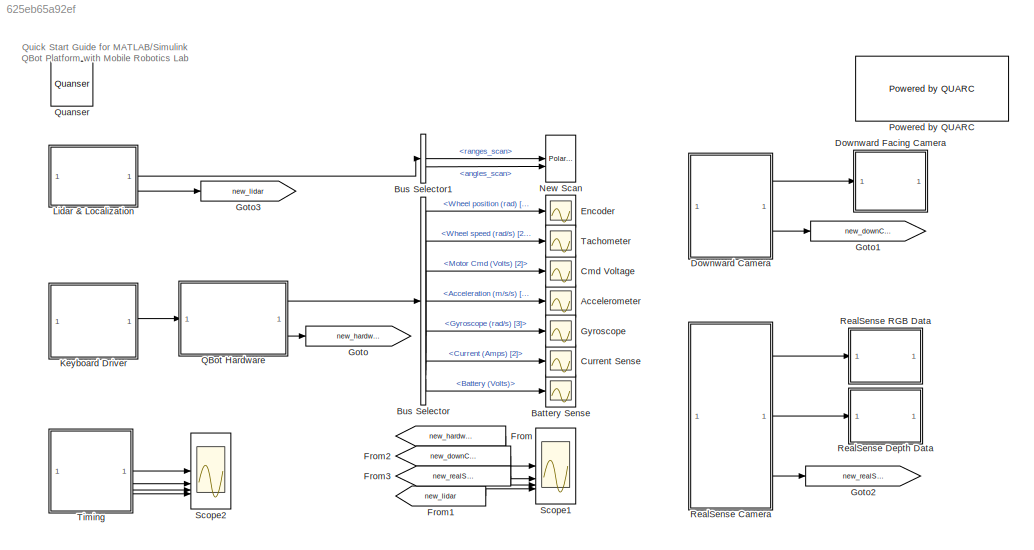
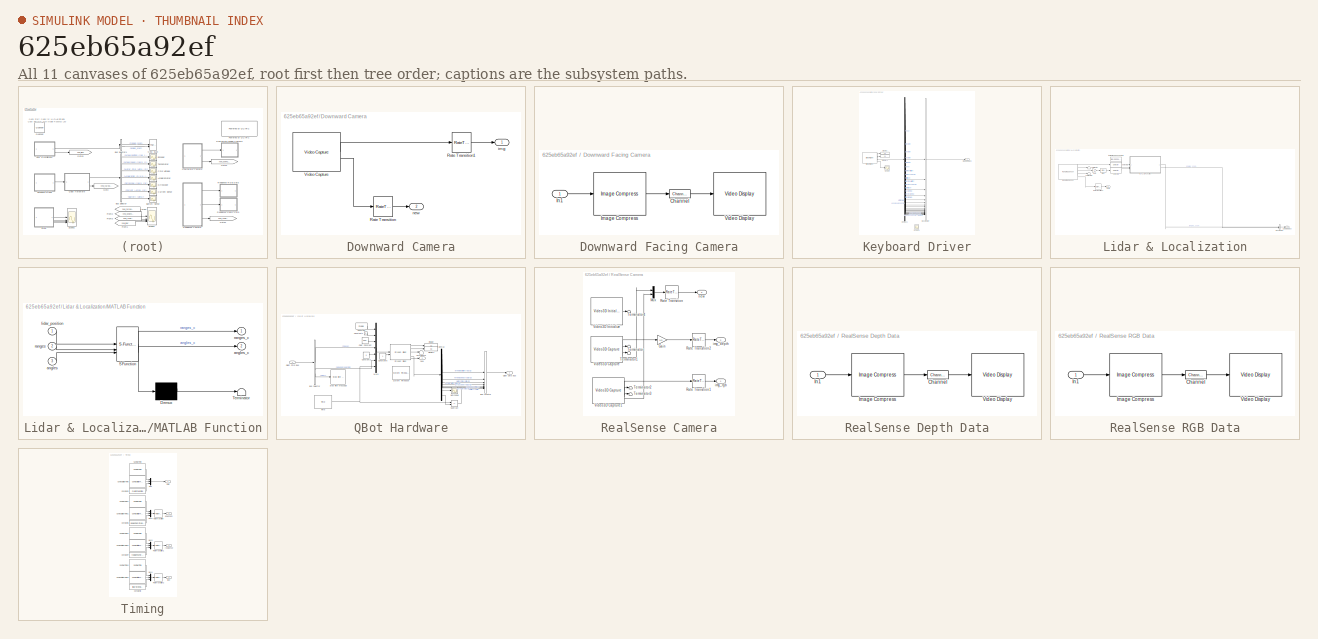
[diagram: thumbnail index - all 11 canvases of the model, root first then tree order]
MODEL slx_625eb65a92ef
KIND model
CONFIG AbsTol = auto
CONFIG EnableMultiTasking = off
CONFIG FixedStep = 1/60
CONFIG MaxStep = auto
CONFIG MinStep = auto
CONFIG PostLoadFcn = qlabs_setup
CONFIG RelTol = 1e-3
CONFIG SampleTimeConstraint = Unconstrained
CONFIG SolverName = ode1
CONFIG StartTime = 0.0
CONFIG StopTime = Inf
WORKSPACE source: mxarray member
WORKSPACE Sig: Simulink.Signal (value not decoded)
WORKSPACE downCamStepSize: Simulink.Parameter (value not decoded)
WORKSPACE lidarStepSize: Simulink.Parameter (value not decoded)
WORKSPACE mainStepSize: Simulink.Parameter (value not decoded)
WORKSPACE mode: Simulink.Parameter (value not decoded)
WORKSPACE realSenseStepSize: Simulink.Parameter (value not decoded)
BLOCK [Scope] Accelerometer
  Floating = off
  NameLocation = right
  NumInputPorts = 1
  ScopeSpecificationString = Simulink.scopes.TimeScopeBlockCfg('CurrentConfiguration', extmgr.ConfigurationSet(extmgr.Configuration('Core','General UI',true),extmgr.Configuration('Core','Source UI',true),extmgr.Configuration('Sources','WiredSimulink',true,'DataLoggingVariableName','ScopeData5'),extmgr.Configuration('Visuals','Time Domain',true,'SerializedDisplays',{struct('MinYLimReal','-1.32758','MaxYLimReal','11.23','YLabel...<+1468ch>
BLOCK [Scope] Battery Sense
  Floating = off
  NameLocation = right
  NumInputPorts = 1
  ScopeSpecificationString = Simulink.scopes.TimeScopeBlockCfg('CurrentConfiguration', extmgr.ConfigurationSet(extmgr.Configuration('Core','General UI',true),extmgr.Configuration('Core','Source UI',true),extmgr.Configuration('Sources','WiredSimulink',true,'DataLoggingVariableName','ScopeData8'),extmgr.Configuration('Visuals','Time Domain',true,'SerializedDisplays',{struct('MinYLimReal','12.81161','MaxYLimReal','12.96349','YLa...<+1408ch>
BLOCK [BusSelector] Bus Selector
  OutputSignals = Wheel position (rad) [2],Wheel speed (rad/s) [2],Motor Cmd (Volts) [2],Acceleration (m/s/s) [3],Gyroscope (rad/s) [3],Current (Amps) [2],Battery (Volts)
BLOCK [BusSelector] Bus Selector1
  OutputSignals = ranges_scan,angles_scan
BLOCK [Scope] Cmd Voltage
  Floating = off
  NameLocation = right
  NumInputPorts = 1
  ScopeSpecificationString = Simulink.scopes.TimeScopeBlockCfg('CurrentConfiguration', extmgr.ConfigurationSet(extmgr.Configuration('Core','General UI',true),extmgr.Configuration('Core','Source UI',true),extmgr.Configuration('Sources','WiredSimulink',true,'DataLoggingVariableName','ScopeData4'),extmgr.Configuration('Visuals','Time Domain',true,'SerializedDisplays',{struct('MinYLimReal','-1.00000','MaxYLimReal','1.00000','YLab...<+1441ch>
BLOCK [Scope] Current Sense
  Floating = off
  NameLocation = right
  NumInputPorts = 1
  ScopeSpecificationString = Simulink.scopes.TimeScopeBlockCfg('CurrentConfiguration', extmgr.ConfigurationSet(extmgr.Configuration('Core','General UI',true),extmgr.Configuration('Core','Source UI',true),extmgr.Configuration('Sources','WiredSimulink',true,'DataLoggingVariableName','ScopeData7'),extmgr.Configuration('Visuals','Time Domain',true,'SerializedDisplays',{struct('MinYLimReal','-0.05029','MaxYLimReal','0.45265','YLab...<+1434ch>
BLOCK [SubSystem] Downward Camera
BLOCK [RateTransition] Downward Camera/Rate Transition
BLOCK [RateTransition] Downward Camera/Rate Transition1
  OutPortSampleTime = downCamStepSize*4
BLOCK [Reference] Downward Camera/Video Capture  REF=quarc_library/Multimedia/Video Capture
  SourceBlock = quarc_library/Multimedia/Video Capture
  SourceProductName = QUARC Targets
  SourceType = Video Capture
BLOCK [Outport] Downward Camera/img
BLOCK [Outport] Downward Camera/new
  Port = 2
BLOCK [SubSystem] Downward Facing Camera
  CopyFcn = set_param(gcbh, 'UserData', gcb);\nset_param(gcbh, 'LinkStatus', 'none');
  LoadFcn = set_param(gcbh, 'UserData', gcb);
  NameChangeFcn = video_display_show([get_param(gcbh, 'UserData'), '/Video Display'], 'rename', [gcb, '/Video Display']);\nvideo_display_show([gcb, '/Video Display'], 'add', gcb);\nset_param(gcbh, 'UserData', gcb);  <repeated x3 — deduplicated; at blocks: Downward Facing Camera, RealSense Depth Data, RealSense RGB Data>
  NameLocation = right
  OpenFcn = video_display_show([gcb, '/Video Display'], 'show', gcb);
  PreDeleteFcn = video_display_show([gcb, '/Video Display'], 'delete');
  StartFcn = video_display_show([gcb, '/Video Display'], 'add', gcb);
  UndoDeleteFcn = set_param(gcbh, 'UserData', gcb);
BLOCK [Reference] Downward Facing Camera/Channel  REF=quarc_library/Signal Routing/Channel
  SourceBlock = quarc_library/Signal Routing/Channel
  SourceProductName = QUARC Targets
  SourceType = Channel
BLOCK [Reference] Downward Facing Camera/Image Compress  REF=quarc_library/Image Processing/Generic/Image Compress
  AttributesFormatString = (%<algorithm>)
  SourceBlock = quarc_library/Image Processing/Generic/Image Compress
  SourceProductName = QUARC Targets
  SourceType = Image Compress
BLOCK [Inport] Downward Facing Camera/In1
BLOCK [Reference] Downward Facing Camera/Video Display  REF=quarc_library/Multimedia/Video Display
  SourceBlock = quarc_library/Multimedia/Video Display
  SourceProductName = QUARC Targets
  SourceType = Video Display
  Tag = quick_start_qbot_platform_t/Downward Facing Camera/Video Display
  UserDataPersistent = on
BLOCK [Scope] Encoder
  Floating = off
  NameLocation = right
  NumInputPorts = 1
  ScopeSpecificationString = Simulink.scopes.TimeScopeBlockCfg('CurrentConfiguration', extmgr.ConfigurationSet(extmgr.Configuration('Core','General UI',true),extmgr.Configuration('Core','Source UI',true),extmgr.Configuration('Sources','WiredSimulink',true,'DataLoggingVariableName','ScopeData2'),extmgr.Configuration('Visuals','Time Domain',true,'SerializedDisplays',{struct('MinYLimReal','-23.46955','MaxYLimReal','23.65434','YL...<+1452ch>
BLOCK [From] From
  GotoTag = new_hardware
BLOCK [From] From1
  GotoTag = new_lidar
BLOCK [From] From2
  GotoTag = new_downCam
BLOCK [From] From3
  GotoTag = new_realSense
BLOCK [Goto] Goto
  GotoTag = new_hardware
BLOCK [Goto] Goto1
  GotoTag = new_downCam
BLOCK [Goto] Goto2
  GotoTag = new_realSense
BLOCK [Goto] Goto3
  GotoTag = new_lidar
BLOCK [Scope] Gyroscope
  Floating = off
  NameLocation = right
  NumInputPorts = 1
  ScopeSpecificationString = Simulink.scopes.TimeScopeBlockCfg('CurrentConfiguration', extmgr.ConfigurationSet(extmgr.Configuration('Core','General UI',true),extmgr.Configuration('Core','Source UI',true),extmgr.Configuration('Sources','WiredSimulink',true,'DataLoggingVariableName','ScopeData6'),extmgr.Configuration('Visuals','Time Domain',true,'SerializedDisplays',{struct('MinYLimReal','-0.40322','MaxYLimReal','1.99912','YLab...<+1468ch>
BLOCK [SubSystem] Keyboard Driver
BLOCK [BusCreator] Keyboard Driver/Bus Creator
  DisplayOption = bar
  InheritFromInputs = on
  Inputs = 21
BLOCK [Demux] Keyboard Driver/Demux1
  Outputs = [1 1 1 1 1 1 1 1 1 1 1 1 1 1 1 1 2 2 2 2 1]
BLOCK [Display] Keyboard Driver/Display
  Decimation = 1
BLOCK [Display] Keyboard Driver/Display1
  Decimation = 1
BLOCK [Outport] Keyboard Driver/QBot Cmd Bus
BLOCK [Scope] Keyboard Driver/Scope
  Floating = off
  NumInputPorts = 1
  ScopeSpecificationString = Simulink.scopes.TimeScopeBlockCfg('CurrentConfiguration', extmgr.ConfigurationSet(extmgr.Configuration('Core','General UI',true),extmgr.Configuration('Core','Source UI',true),extmgr.Configuration('Sources','WiredSimulink',true,'DataLoggingVariableName','ScopeData1'),extmgr.Configuration('Visuals','Time Domain',true,'SerializedDisplays',{struct('MinYLimReal','-0.125','MaxYLimReal','1.125','YLabelRe...<+1362ch>
BLOCK [Scope] Keyboard Driver/Scope1
  Floating = off
  NumInputPorts = 1
  ScopeSpecificationString = Simulink.scopes.TimeScopeBlockCfg('CurrentConfiguration', extmgr.ConfigurationSet(extmgr.Configuration('Core','General UI',true),extmgr.Configuration('Core','Source UI',true),extmgr.Configuration('Sources','WiredSimulink',true,'DataLoggingVariableName','ScopeData2'),extmgr.Configuration('Visuals','Time Domain',true,'SerializedDisplays',{struct('MinYLimReal','-1.00000','MaxYLimReal','1.00000','YLab...<+1403ch>
BLOCK [Reference] Keyboard Driver/Stream Client  REF=quarc_library/Communications/Basic/Stream Client
  AttributesFormatString = "tcpip://localhost:18889?nagle='off'"
  SourceBlock = quarc_library/Communications/Basic/Stream Client
  SourceProductName = QUARC Targets
  SourceType = Stream Client
BLOCK [SubSystem] Lidar & Localization
BLOCK [Bias] Lidar & Localization/Bias
  Bias = pi/2
  SaturateOnIntegerOverflow = off
BLOCK [BusCreator] Lidar & Localization/Bus Creator
  DisplayOption = bar
  InheritFromInputs = on
  Inputs = 2
BLOCK [Gain] Lidar & Localization/Gain
  Gain = -1
BLOCK [Outport] Lidar & Localization/Lidar Data Bus
BLOCK [SubSystem] Lidar & Localization/MATLAB Function
  ErrorFcn = Stateflow.Translate.translate
  LibrarySourceBlock = simulink/User-Defined\nFunctions/MATLAB Function
  PermitHierarchicalResolution = ExplicitOnly
  SFBlockType = MATLAB Function
  TreatAsAtomicUnit = on
BLOCK [Demux] Lidar & Localization/MATLAB Function/ Demux 
  Outputs = 1
BLOCK [S-Function] Lidar & Localization/MATLAB Function/ SFunction 
  EnableBusSupport = on
  FunctionName = sf_sfun
  PortCounts = [3 3]
  SFcnIsStateOwnerBlock = off
  SFunctionDeploymentMode = off
  Tag = Stateflow S-Function 4
BLOCK [Terminator] Lidar & Localization/MATLAB Function/ Terminator 
BLOCK [Inport] Lidar & Localization/MATLAB Function/angles
  Port = 3
BLOCK [Outport] Lidar & Localization/MATLAB Function/angles_c
  Port = 2
BLOCK [Inport] Lidar & Localization/MATLAB Function/lidar_position
BLOCK [Inport] Lidar & Localization/MATLAB Function/ranges
  Port = 2
BLOCK [Outport] Lidar & Localization/MATLAB Function/ranges_c
BLOCK [Reference] Lidar & Localization/Ranging Sensor  REF=quarc_library/Devices/Third-Party/Sensors/Ranging Sensor
  SourceBlock = quarc_library/Devices/Third-Party/Sensors/Ranging Sensor
  SourceProductName = QUARC Targets
  SourceType = Ranging Sensor
BLOCK [RateTransition] Lidar & Localization/Rate Transition4
BLOCK [Selector] Lidar & Localization/Selector1
  IndexOptions = Index vector (dialog)
  Indices = [1:4:1677]
  InputPortWidth = 1680
  OutputSizes = 1
BLOCK [Selector] Lidar & Localization/Selector2
  IndexOptions = Index vector (dialog)
  Indices = [1:4:1677]
  InputPortWidth = 1680
  OutputSizes = 1
BLOCK [Terminator] Lidar & Localization/Terminator
BLOCK [Terminator] Lidar & Localization/Terminator1
BLOCK [Outport] Lidar & Localization/new
  Port = 2
BLOCK [Constant] Lidar & Localization/the lidar is 9.5" ahead of CG
  NameLocation = top
  SampleTime = lidarStepSize
  Value = [9.5*0.0254, 0]
BLOCK [Reference] New Scan  REF=quarc_library/Sinks/Figures/Polar Figure
  NameLocation = right
  SourceBlock = quarc_library/Sinks/Figures/Polar Figure
  SourceProductName = QUARC Targets
  SourceType = Polar Figure
BLOCK [Reference] Powered by QUARC  REF=quarc_library/Logos/Powered by QUARC
  SourceBlock = quarc_library/Logos/Powered by QUARC
  SourceProductName = QUARC Targets
  SourceType = Powered by QUARC
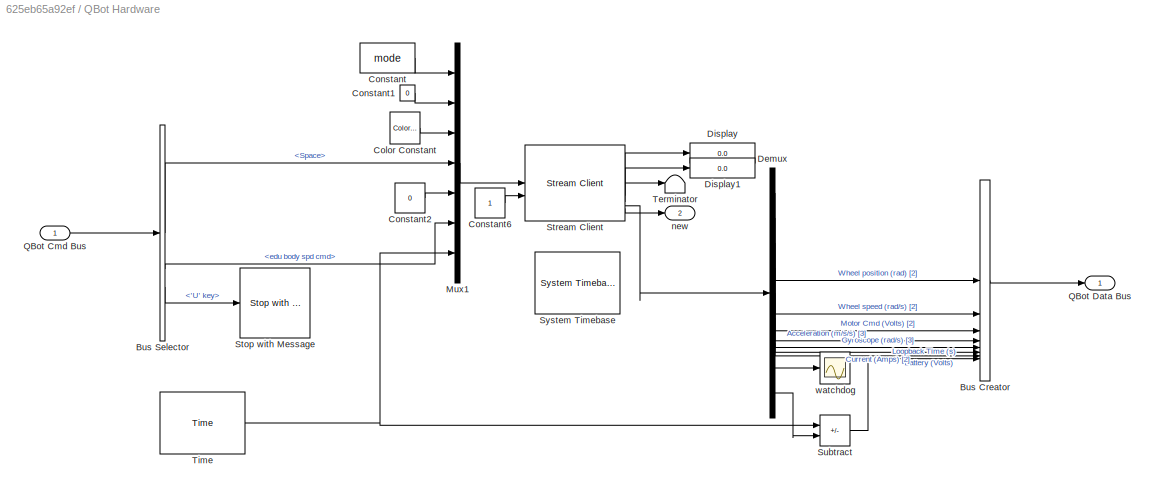
BLOCK [SubSystem] QBot Hardware
BLOCK [BusCreator] QBot Hardware/Bus Creator
  DisplayOption = bar
  InheritFromInputs = on
  Inputs = 8
BLOCK [BusSelector] QBot Hardware/Bus Selector
  OutputSignals = Space,edu body spd cmd,'U' key
BLOCK [Reference] QBot Hardware/Color Constant  REF=quarc_library/Sources/Signals/Color Constant
  SourceBlock = quarc_library/Sources/Signals/Color Constant
  SourceProductName = QUARC Targets
  SourceType = Color Constant
BLOCK [Constant] QBot Hardware/Constant
  Value = mode
BLOCK [Constant] QBot Hardware/Constant1
  Value = 0
BLOCK [Constant] QBot Hardware/Constant2
  Value = 0
BLOCK [Constant] QBot Hardware/Constant6
BLOCK [Demux] QBot Hardware/Demux
  Outputs = [2 2 2 3 3 2 1 1 1]
BLOCK [Display] QBot Hardware/Display
  Decimation = 1
BLOCK [Display] QBot Hardware/Display1
  Decimation = 1
BLOCK [Mux] QBot Hardware/Mux1
  DisplayOption = bar
  Inputs = 7
BLOCK [Inport] QBot Hardware/QBot Cmd Bus
BLOCK [Outport] QBot Hardware/QBot Data Bus
BLOCK [Reference] QBot Hardware/Stop with Message  REF=quarc_library/Sinks/Error Handling/Stop with Message
  AttributesFormatString = "%<message>"
  SourceBlock = quarc_library/Sinks/Error Handling/Stop with Message
  SourceProductName = QUARC Targets
  SourceType = Stop with Message
BLOCK [Reference] QBot Hardware/Stream Client  REF=quarc_library/Communications/Basic/Stream Client
  AttributesFormatString = "tcpip://localhost:18888"
  SourceBlock = quarc_library/Communications/Basic/Stream Client
  SourceProductName = QUARC Targets
  SourceType = Stream Client
BLOCK [Sum] QBot Hardware/Subtract
  IconShape = rectangular
  Inputs = +-
BLOCK [Reference] QBot Hardware/System Timebase  REF=quarc_library/Advanced/Timing/System Timebase
  SourceBlock = quarc_library/Advanced/Timing/System Timebase
  SourceProductName = QUARC Targets
  SourceType = System Timebase
BLOCK [Terminator] QBot Hardware/Terminator
BLOCK [Reference] QBot Hardware/Time  REF=quarc_library/Sources/Time/Time
  SourceBlock = quarc_library/Sources/Time/Time
  SourceProductName = QUARC Targets
  SourceType = Time
BLOCK [Outport] QBot Hardware/new
  Port = 2
BLOCK [Scope] QBot Hardware/watchdog
  Floating = off
  NumInputPorts = 1
  ScopeSpecificationString = Simulink.scopes.TimeScopeBlockCfg('CurrentConfiguration', extmgr.ConfigurationSet(extmgr.Configuration('Core','General UI',true),extmgr.Configuration('Core','Source UI',true),extmgr.Configuration('Sources','WiredSimulink',true,'DataLoggingVariableName','ScopeData1'),extmgr.Configuration('Visuals','Time Domain',true),extmgr.Configuration('Tools','Plot Navigation',true),extmgr.Configuration('Tools',...<+40ch>
BLOCK [Reference] Quanser  REF=quarc_library/Logos/Quanser
  SourceBlock = quarc_library/Logos/Quanser
  SourceProductName = QUARC Targets
  SourceType = Powered by Quanser
BLOCK [SubSystem] RealSense Camera
BLOCK [Gain] RealSense Camera/Gain
  Gain = 1/5
BLOCK [Mux] RealSense Camera/Mux
  DisplayOption = bar
  Inputs = 2
BLOCK [RateTransition] RealSense Camera/Rate Transition
BLOCK [RateTransition] RealSense Camera/Rate Transition1
  OutPortSampleTime = realSenseStepSize*2
BLOCK [RateTransition] RealSense Camera/Rate Transition2
  OutPortSampleTime = realSenseStepSize*2
BLOCK [Terminator] RealSense Camera/Terminator
BLOCK [Terminator] RealSense Camera/Terminator1
BLOCK [Terminator] RealSense Camera/Terminator2
BLOCK [Terminator] RealSense Camera/Terminator3
BLOCK [Terminator] RealSense Camera/Terminator4
BLOCK [Reference] RealSense Camera/Video3D Capture  REF=quarc_library/Multimedia/Video3D Capture
  SourceBlock = quarc_library/Multimedia/Video3D Capture
  SourceProductName = QUARC Targets
  SourceType = Video3D Capture
  UserDataPersistent = on
BLOCK [Reference] RealSense Camera/Video3D Capture1  REF=quarc_library/Multimedia/Video3D Capture
  SourceBlock = quarc_library/Multimedia/Video3D Capture
  SourceProductName = QUARC Targets
  SourceType = Video3D Capture
  UserDataPersistent = on
BLOCK [Reference] RealSense Camera/Video3D Initialize  REF=quarc_library/Multimedia/Video3D Initialize
  SourceBlock = quarc_library/Multimedia/Video3D Initialize
  SourceProductName = QUARC Targets
  SourceType = Video3D Initialize
BLOCK [Outport] RealSense Camera/img_depth
  Port = 2
BLOCK [Outport] RealSense Camera/img_rgb
BLOCK [Outport] RealSense Camera/new
  Port = 3
BLOCK [SubSystem] RealSense Depth Data
  CopyFcn = set_param(gcbh, 'UserData', gcb);\nset_param(gcbh, 'LinkStatus', 'none');
  LoadFcn = set_param(gcbh, 'UserData', gcb);
  NameLocation = right
  OpenFcn = video_display_show([gcb, '/Video Display'], 'show', gcb);
  PreDeleteFcn = video_display_show([gcb, '/Video Display'], 'delete');
  StartFcn = video_display_show([gcb, '/Video Display'], 'add', gcb);
  UndoDeleteFcn = set_param(gcbh, 'UserData', gcb);
BLOCK [Reference] RealSense Depth Data/Channel  REF=quarc_library/Signal Routing/Channel
  SourceBlock = quarc_library/Signal Routing/Channel
  SourceProductName = QUARC Targets
  SourceType = Channel
BLOCK [Reference] RealSense Depth Data/Image Compress  REF=quarc_library/Image Processing/Generic/Image Compress
  AttributesFormatString = (%<algorithm>)
  SourceBlock = quarc_library/Image Processing/Generic/Image Compress
  SourceProductName = QUARC Targets
  SourceType = Image Compress
BLOCK [Inport] RealSense Depth Data/In1
BLOCK [Reference] RealSense Depth Data/Video Display  REF=quarc_library/Multimedia/Video Display
  SourceBlock = quarc_library/Multimedia/Video Display
  SourceProductName = QUARC Targets
  SourceType = Video Display
  Tag = quick_start_qbot_platform_t/RealSense Depth Data/Video Display
  UserDataPersistent = on
BLOCK [SubSystem] RealSense RGB Data
  CopyFcn = set_param(gcbh, 'UserData', gcb);\nset_param(gcbh, 'LinkStatus', 'none');
  LoadFcn = set_param(gcbh, 'UserData', gcb);
  NameLocation = right
  OpenFcn = video_display_show([gcb, '/Video Display'], 'show', gcb);
  PreDeleteFcn = video_display_show([gcb, '/Video Display'], 'delete');
  StartFcn = video_display_show([gcb, '/Video Display'], 'add', gcb);
  UndoDeleteFcn = set_param(gcbh, 'UserData', gcb);
BLOCK [Reference] RealSense RGB Data/Channel  REF=quarc_library/Signal Routing/Channel
  SourceBlock = quarc_library/Signal Routing/Channel
  SourceProductName = QUARC Targets
  SourceType = Channel
BLOCK [Reference] RealSense RGB Data/Image Compress  REF=quarc_library/Image Processing/Generic/Image Compress
  AttributesFormatString = (%<algorithm>)
  SourceBlock = quarc_library/Image Processing/Generic/Image Compress
  SourceProductName = QUARC Targets
  SourceType = Image Compress
BLOCK [Inport] RealSense RGB Data/In1
BLOCK [Reference] RealSense RGB Data/Video Display  REF=quarc_library/Multimedia/Video Display
  SourceBlock = quarc_library/Multimedia/Video Display
  SourceProductName = QUARC Targets
  SourceType = Video Display
  Tag = quick_start_qbot_platform_t/RealSense RGB Data/Video Display
  UserDataPersistent = on
BLOCK [Scope] Scope1
  Floating = off
  NumInputPorts = 4
  ScopeSpecificationString = Simulink.scopes.TimeScopeBlockCfg('CurrentConfiguration', extmgr.ConfigurationSet(extmgr.Configuration('Core','General UI',true),extmgr.Configuration('Core','Source UI',true),extmgr.Configuration('Sources','WiredSimulink',true,'DataLoggingVariableName','ScopeData1'),extmgr.Configuration('Visuals','Time Domain',true,'SerializedDisplays',{struct('MinYLimReal','-0.125','MaxYLimReal','1.125','YLabelRe...<+3485ch>
BLOCK [Scope] Scope2
  Floating = off
  NumInputPorts = 4
  ScopeSpecificationString = Simulink.scopes.TimeScopeBlockCfg('CurrentConfiguration', extmgr.ConfigurationSet(extmgr.Configuration('Core','General UI',true),extmgr.Configuration('Core','Source UI',true),extmgr.Configuration('Sources','WiredSimulink',true,'DataLoggingVariableName','ScopeData1'),extmgr.Configuration('Visuals','Time Domain',true,'SerializedDisplays',{struct('MinYLimReal','-0.05052','MaxYLimReal','0.45472','YLab...<+3547ch>
BLOCK [Scope] Tachometer
  Floating = off
  NameLocation = right
  NumInputPorts = 1
  ScopeSpecificationString = Simulink.scopes.TimeScopeBlockCfg('CurrentConfiguration', extmgr.ConfigurationSet(extmgr.Configuration('Core','General UI',true),extmgr.Configuration('Core','Source UI',true),extmgr.Configuration('Sources','WiredSimulink',true,'DataLoggingVariableName','ScopeData3'),extmgr.Configuration('Visuals','Time Domain',true,'SerializedDisplays',{struct('MinYLimReal','-11.69986','MaxYLimReal','11.67552','YL...<+1449ch>
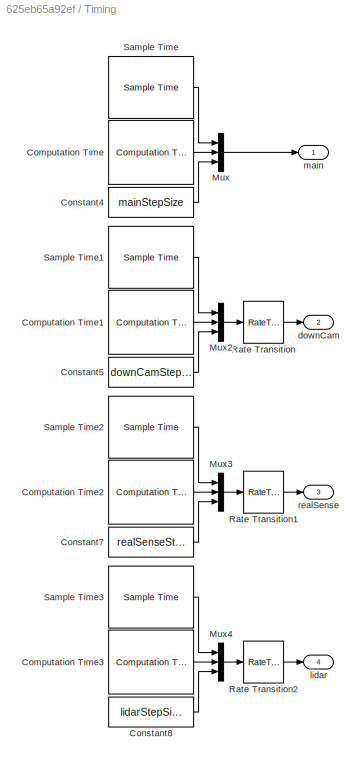
BLOCK [SubSystem] Timing
BLOCK [Reference] Timing/Computation Time  REF=quarc_library/Sources/Time/Computation Time
  SourceBlock = quarc_library/Sources/Time/Computation Time
  SourceProductName = QUARC Targets
  SourceType = Computation Time
BLOCK [Reference] Timing/Computation Time1  REF=quarc_library/Sources/Time/Computation Time
  SourceBlock = quarc_library/Sources/Time/Computation Time
  SourceProductName = QUARC Targets
  SourceType = Computation Time
BLOCK [Reference] Timing/Computation Time2  REF=quarc_library/Sources/Time/Computation Time
  SourceBlock = quarc_library/Sources/Time/Computation Time
  SourceProductName = QUARC Targets
  SourceType = Computation Time
BLOCK [Reference] Timing/Computation Time3  REF=quarc_library/Sources/Time/Computation Time
  SourceBlock = quarc_library/Sources/Time/Computation Time
  SourceProductName = QUARC Targets
  SourceType = Computation Time
BLOCK [Constant] Timing/Constant4
  Value = mainStepSize
BLOCK [Constant] Timing/Constant5
  Value = downCamStepSize
BLOCK [Constant] Timing/Constant7
  Value = realSenseStepSize
BLOCK [Constant] Timing/Constant8
  Value = lidarStepSize
BLOCK [Mux] Timing/Mux
  DisplayOption = bar
  Inputs = 3
BLOCK [Mux] Timing/Mux2
  DisplayOption = bar
  Inputs = 3
BLOCK [Mux] Timing/Mux3
  DisplayOption = bar
  Inputs = 3
BLOCK [Mux] Timing/Mux4
  DisplayOption = bar
  Inputs = 3
BLOCK [RateTransition] Timing/Rate Transition
BLOCK [RateTransition] Timing/Rate Transition1
BLOCK [RateTransition] Timing/Rate Transition2
BLOCK [Reference] Timing/Sample Time  REF=quarc_library/Sources/Time/Sample Time
  Priority = -99
  SourceBlock = quarc_library/Sources/Time/Sample Time
  SourceProductName = QUARC Targets
  SourceType = Sample Time
BLOCK [Reference] Timing/Sample Time1  REF=quarc_library/Sources/Time/Sample Time
  Priority = -99
  SourceBlock = quarc_library/Sources/Time/Sample Time
  SourceProductName = QUARC Targets
  SourceType = Sample Time
BLOCK [Reference] Timing/Sample Time2  REF=quarc_library/Sources/Time/Sample Time
  Priority = -99
  SourceBlock = quarc_library/Sources/Time/Sample Time
  SourceProductName = QUARC Targets
  SourceType = Sample Time
BLOCK [Reference] Timing/Sample Time3  REF=quarc_library/Sources/Time/Sample Time
  Priority = -99
  SourceBlock = quarc_library/Sources/Time/Sample Time
  SourceProductName = QUARC Targets
  SourceType = Sample Time
BLOCK [Outport] Timing/downCam
  Port = 2
BLOCK [Outport] Timing/lidar
  Port = 4
BLOCK [Outport] Timing/main
BLOCK [Outport] Timing/realSense
  Port = 3
ANNOTATION (root): Quick Start Guide for MATLAB/Simulink QBot Platform with Mobile Robotics Lab
LINE Bus Selector1:1 -> New Scan:1
LINE Bus Selector1:2 -> New Scan:2
LINE Bus Selector:1 -> Encoder:1
LINE Bus Selector:2 -> Tachometer:1
LINE Bus Selector:3 -> Cmd Voltage:1
LINE Bus Selector:4 -> Accelerometer:1
LINE Bus Selector:5 -> Gyroscope:1
LINE Bus Selector:6 -> Current Sense:1
LINE Bus Selector:7 -> Battery Sense:1
LINE Downward Camera/Rate Transition1:1 -> Downward Camera/img:1
LINE Downward Camera/Rate Transition:1 -> Downward Camera/new:1
LINE Downward Camera/Video Capture:1 -> Downward Camera/Rate Transition1:1
LINE Downward Camera/Video Capture:2 -> Downward Camera/Rate Transition:1
LINE Downward Camera:1 -> Downward Facing Camera:1
LINE Downward Camera:2 -> Goto1:1
LINE From1:1 -> Scope1:4
LINE From2:1 -> Scope1:2
LINE From3:1 -> Scope1:3
LINE From:1 -> Scope1:1
LINE Keyboard Driver/Bus Creator:1 -> Keyboard Driver/QBot Cmd Bus:1
LINE Keyboard Driver/Demux1:1 -> Keyboard Driver/Bus Creator:1
LINE Keyboard Driver/Demux1:10 -> Keyboard Driver/Bus Creator:10
LINE Keyboard Driver/Demux1:11 -> Keyboard Driver/Bus Creator:11
LINE Keyboard Driver/Demux1:12 -> Keyboard Driver/Bus Creator:12
LINE Keyboard Driver/Demux1:13 -> Keyboard Driver/Bus Creator:13
LINE Keyboard Driver/Demux1:14 -> Keyboard Driver/Bus Creator:14
LINE Keyboard Driver/Demux1:15 -> Keyboard Driver/Bus Creator:15
LINE Keyboard Driver/Demux1:16 -> Keyboard Driver/Bus Creator:16
LINE Keyboard Driver/Demux1:17 -> Keyboard Driver/Bus Creator:17
LINE Keyboard Driver/Demux1:18 -> Keyboard Driver/Bus Creator:18
LINE Keyboard Driver/Demux1:19 -> Keyboard Driver/Bus Creator:19
LINE Keyboard Driver/Demux1:2 -> Keyboard Driver/Bus Creator:2
LINE Keyboard Driver/Demux1:20 -> Keyboard Driver/Bus Creator:20
LINE Keyboard Driver/Demux1:21 -> Keyboard Driver/Bus Creator:21
LINE Keyboard Driver/Demux1:3 -> Keyboard Driver/Bus Creator:3
LINE Keyboard Driver/Demux1:4 -> Keyboard Driver/Bus Creator:4
LINE Keyboard Driver/Demux1:5 -> Keyboard Driver/Bus Creator:5
LINE Keyboard Driver/Demux1:6 -> Keyboard Driver/Bus Creator:6
LINE Keyboard Driver/Demux1:7 -> Keyboard Driver/Bus Creator:7
LINE Keyboard Driver/Demux1:8 -> Keyboard Driver/Bus Creator:8
LINE Keyboard Driver/Demux1:9 -> Keyboard Driver/Bus Creator:9
LINE Keyboard Driver/Stream Client:1 -> Keyboard Driver/Display:1
LINE Keyboard Driver/Stream Client:2 -> Keyboard Driver/Display1:1
LINE Keyboard Driver/Stream Client:3 -> Keyboard Driver/Demux1:1
LINE Keyboard Driver/Stream Client:4 -> Keyboard Driver/Scope:1
LINE Keyboard Driver:1 -> QBot Hardware:1
LINE Lidar & Localization/Bias:1 -> Lidar & Localization/Selector1:1
LINE Lidar & Localization/Bus Creator:1 -> Lidar & Localization/Lidar Data Bus:1
LINE Lidar & Localization/Gain:1 -> Lidar & Localization/Bias:1
LINE Lidar & Localization/MATLAB Function:1 -> Lidar & Localization/Bus Creator:1
LINE Lidar & Localization/MATLAB Function:2 -> Lidar & Localization/Bus Creator:2
LINE Lidar & Localization/Ranging Sensor:1 -> Lidar & Localization/Selector2:1
LINE Lidar & Localization/Ranging Sensor:2 -> Lidar & Localization/Terminator:1
LINE Lidar & Localization/Ranging Sensor:3 -> Lidar & Localization/Gain:1
LINE Lidar & Localization/Ranging Sensor:4 -> Lidar & Localization/Terminator1:1
LINE Lidar & Localization/Ranging Sensor:5 -> Lidar & Localization/Rate Transition4:1
LINE Lidar & Localization/Rate Transition4:1 -> Lidar & Localization/new:1
LINE Lidar & Localization/Selector1:1 -> Lidar & Localization/MATLAB Function:3
LINE Lidar & Localization/Selector2:1 -> Lidar & Localization/MATLAB Function:2
LINE Lidar & Localization/the lidar is 9.5" ahead of CG:1 -> Lidar & Localization/MATLAB Function:1
LINE Lidar & Localization:1 -> Bus Selector1:1
LINE Lidar & Localization:2 -> Goto3:1
LINE QBot Hardware/Bus Creator:1 -> QBot Hardware/QBot Data Bus:1
LINE QBot Hardware/Bus Selector:1 -> QBot Hardware/Mux1:4
LINE QBot Hardware/Bus Selector:2 -> QBot Hardware/Mux1:6
LINE QBot Hardware/Bus Selector:3 -> QBot Hardware/Stop with Message:1
LINE QBot Hardware/Color Constant:1 -> QBot Hardware/Mux1:3
LINE QBot Hardware/Constant1:1 -> QBot Hardware/Mux1:2
LINE QBot Hardware/Constant2:1 -> QBot Hardware/Mux1:5
LINE QBot Hardware/Constant6:1 -> QBot Hardware/Stream Client:2
LINE QBot Hardware/Constant:1 -> QBot Hardware/Mux1:1
LINE QBot Hardware/Demux:1 -> QBot Hardware/Bus Creator:1
LINE QBot Hardware/Demux:2 -> QBot Hardware/Bus Creator:2
LINE QBot Hardware/Demux:3 -> QBot Hardware/Bus Creator:3
LINE QBot Hardware/Demux:4 -> QBot Hardware/Bus Creator:4
LINE QBot Hardware/Demux:5 -> QBot Hardware/Bus Creator:5
LINE QBot Hardware/Demux:6 -> QBot Hardware/Bus Creator:6
LINE QBot Hardware/Demux:7 -> QBot Hardware/Bus Creator:7
LINE QBot Hardware/Demux:8 -> QBot Hardware/watchdog:1
LINE QBot Hardware/Demux:9 -> QBot Hardware/Subtract:2
LINE QBot Hardware/Mux1:1 -> QBot Hardware/Stream Client:1
LINE QBot Hardware/QBot Cmd Bus:1 -> QBot Hardware/Bus Selector:1
LINE QBot Hardware/Stream Client:1 -> QBot Hardware/Display:1
LINE QBot Hardware/Stream Client:2 -> QBot Hardware/Display1:1
LINE QBot Hardware/Stream Client:3 -> QBot Hardware/Terminator:1
LINE QBot Hardware/Stream Client:4 -> QBot Hardware/Demux:1
LINE QBot Hardware/Stream Client:5 -> QBot Hardware/new:1
LINE QBot Hardware/Subtract:1 -> QBot Hardware/Bus Creator:8
NET QBot Hardware/Time:1 -> QBot Hardware/Mux1:7, QBot Hardware/Subtract:1
LINE QBot Hardware:1 -> Bus Selector:1
LINE QBot Hardware:2 -> Goto:1
LINE RealSense Camera/Gain:1 -> RealSense Camera/Rate Transition2:1
LINE RealSense Camera/Mux:1 -> RealSense Camera/Rate Transition:1
LINE RealSense Camera/Rate Transition1:1 -> RealSense Camera/img_rgb:1
LINE RealSense Camera/Rate Transition2:1 -> RealSense Camera/img_depth:1
LINE RealSense Camera/Rate Transition:1 -> RealSense Camera/new:1
LINE RealSense Camera/Video3D Capture1:1 -> RealSense Camera/Rate Transition1:1
LINE RealSense Camera/Video3D Capture1:2 -> RealSense Camera/Terminator2:1
LINE RealSense Camera/Video3D Capture1:3 -> RealSense Camera/Terminator3:1
LINE RealSense Camera/Video3D Capture1:4 -> RealSense Camera/Mux:2
LINE RealSense Camera/Video3D Capture:1 -> RealSense Camera/Gain:1
LINE RealSense Camera/Video3D Capture:2 -> RealSense Camera/Terminator:1
LINE RealSense Camera/Video3D Capture:3 -> RealSense Camera/Terminator1:1
LINE RealSense Camera/Video3D Capture:4 -> RealSense Camera/Mux:1
LINE RealSense Camera/Video3D Initialize:1 -> RealSense Camera/Terminator4:1
LINE RealSense Camera:1 -> RealSense RGB Data:1
LINE RealSense Camera:2 -> RealSense Depth Data:1
LINE RealSense Camera:3 -> Goto2:1
LINE Timing/Computation Time1:1 -> Timing/Mux2:2
LINE Timing/Computation Time2:1 -> Timing/Mux3:2
LINE Timing/Computation Time3:1 -> Timing/Mux4:2
LINE Timing/Computation Time:1 -> Timing/Mux:2
LINE Timing/Constant4:1 -> Timing/Mux:3
LINE Timing/Constant5:1 -> Timing/Mux2:3
LINE Timing/Constant7:1 -> Timing/Mux3:3
LINE Timing/Constant8:1 -> Timing/Mux4:3
LINE Timing/Mux2:1 -> Timing/Rate Transition:1
LINE Timing/Mux3:1 -> Timing/Rate Transition1:1
LINE Timing/Mux4:1 -> Timing/Rate Transition2:1
LINE Timing/Mux:1 -> Timing/main:1
LINE Timing/Rate Transition1:1 -> Timing/realSense:1
LINE Timing/Rate Transition2:1 -> Timing/lidar:1
LINE Timing/Rate Transition:1 -> Timing/downCam:1
LINE Timing/Sample Time1:1 -> Timing/Mux2:1
LINE Timing/Sample Time2:1 -> Timing/Mux3:1
LINE Timing/Sample Time3:1 -> Timing/Mux4:1
LINE Timing/Sample Time:1 -> Timing/Mux:1
LINE Timing:1 -> Scope2:1
LINE Timing:2 -> Scope2:2
LINE Timing:3 -> Scope2:3
LINE Timing:4 -> Scope2:4
note: NET lines group one-source signal fan-out (src -> all destinations, sorted); 1:1 wires keep LINE
CHART Lidar & Localization/MATLAB Function states=1 transitions=1
  STATE_LABEL 'eML_blk_kernel()'
  STATE_LABEL 'SCRIPT:\nfunction [ranges_c,angles_c] = correct_lidar(lidar_position, ranges,angles)\n\nx = ranges.*cos(angles) + lidar_position(1);\ny = ranges.*sin(angles) + lidar_position(2);\n\nranges_c = sqrt(x.^2 + y.^2);\nangles_c = atan2(y, x);\n\nend\n\n'
CHART  states=0 transitions=0
